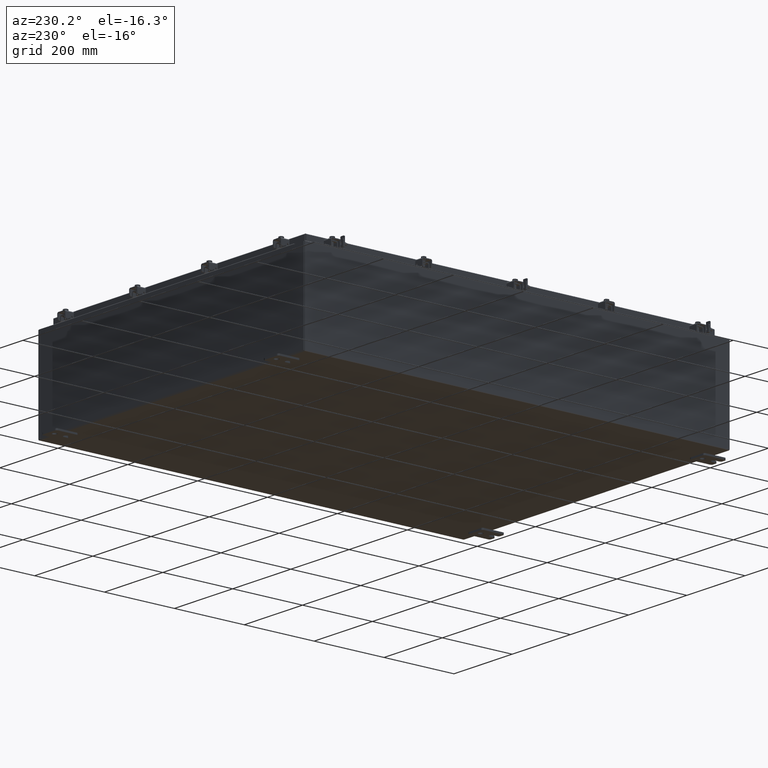
[diagram: clean part render]
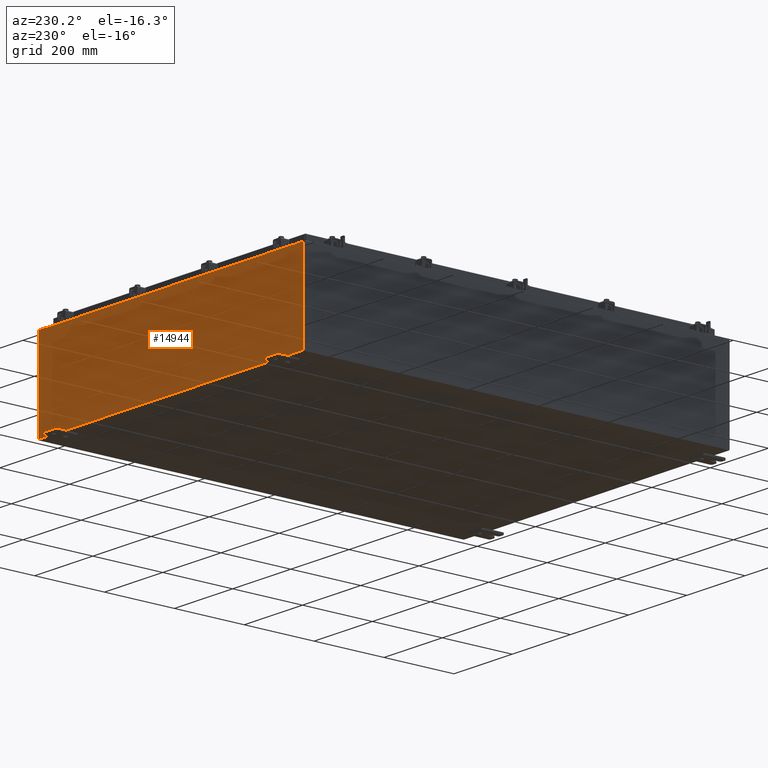
[diagram: same view with one face highlighted and labeled with its STEP entity id]
A machine part, auxiliary view. The second image highlights one B-rep face of the part: STEP entity #14944.
In plain terms, the highlighted planar face has unit normal (0, -1, 0).
Its self-contained STEP definition (entity closure, byte-faithful):
#78 = CARTESIAN_POINT ( 'NONE',  ( 16.63720000000000400, 0.0000000000000000000, 0.0000000000000000000 ) ) ;
#396 = ORIENTED_EDGE ( 'NONE', *, *, #16751, .T. ) ;
#572 = CIRCLE ( 'NONE', #24069, 0.01867499999999949400 ) ;
#1124 = DIRECTION ( 'NONE',  ( -0.0000000000000000000, 1.000000000000000000, -0.0000000000000000000 ) ) ;
#1149 = LINE ( 'NONE', #17391, #21788 ) ;
#2228 = VECTOR ( 'NONE', #7905, 39.37007874015748100 ) ;
#2533 = VECTOR ( 'NONE', #15061, 39.37007874015748100 ) ;
#2615 = CARTESIAN_POINT ( 'NONE',  ( -16.67455000000000000, -0.0000000000000000000, 0.0000000000000000000 ) ) ;
#2681 = EDGE_LOOP ( 'NONE', ( #20347, #8899, #17238, #16790, #3472, #9007, #3804, #396, #13485, #26007, #18207, #12323 ) ) ;
#2917 = CARTESIAN_POINT ( 'NONE',  ( -17.92530000000000000, 0.0000000000000000000, 4.925300000000000000 ) ) ;
#3228 = CARTESIAN_POINT ( 'NONE',  ( 16.63720000000000400, 0.0000000000000000000, 4.912300000000000100 ) ) ;
#3472 = ORIENTED_EDGE ( 'NONE', *, *, #21086, .F. ) ;
#3637 = PLANE ( 'NONE',  #26906 ) ;
#3701 = CARTESIAN_POINT ( 'NONE',  ( -16.63720000000000400, -0.0000000000000000000, 0.0000000000000000000 ) ) ;
#3710 = VERTEX_POINT ( 'NONE', #3228 ) ;
#3804 = ORIENTED_EDGE ( 'NONE', *, *, #15725, .F. ) ;
#4060 = VECTOR ( 'NONE', #26205, 39.37007874015748100 ) ;
#4766 = DIRECTION ( 'NONE',  ( 0.0000000000000000000, 0.0000000000000000000, 1.000000000000000000 ) ) ;
#5043 = DIRECTION ( 'NONE',  ( -8.681145560800009800E-014, 0.0000000000000000000, -1.000000000000000000 ) ) ;
#5249 = VECTOR ( 'NONE', #8624, 39.37007874015748100 ) ;
#5761 = DIRECTION ( 'NONE',  ( 0.0000000000000000000, -0.0000000000000000000, -1.000000000000000000 ) ) ;
#5833 = EDGE_CURVE ( 'NONE', #11591, #24141, #10582, .T. ) ;
#6787 = CARTESIAN_POINT ( 'NONE',  ( 17.92530000000000000, 0.0000000000000000000, -4.925300000000000000 ) ) ;
#6938 = LINE ( 'NONE', #23240, #18984 ) ;
#7022 = CARTESIAN_POINT ( 'NONE',  ( -16.63720000000000400, -7.171100983368691200E-016, 4.912300000000000100 ) ) ;
#7140 = CIRCLE ( 'NONE', #10379, 0.01867499999999949400 ) ;
#7340 = DIRECTION ( 'NONE',  ( 0.0000000000000000000, 0.0000000000000000000, -1.000000000000000000 ) ) ;
#7688 = CARTESIAN_POINT ( 'NONE',  ( -17.92530000000000000, 0.0000000000000000000, -4.925300000000000000 ) ) ;
#7905 = DIRECTION ( 'NONE',  ( 0.0000000000000000000, 0.0000000000000000000, -1.000000000000000000 ) ) ;
#7946 = VERTEX_POINT ( 'NONE', #17876 ) ;
#8139 = VERTEX_POINT ( 'NONE', #7688 ) ;
#8212 = LINE ( 'NONE', #23511, #2533 ) ;
#8220 = EDGE_CURVE ( 'NONE', #13167, #18881, #7140, .T. ) ;
#8624 = DIRECTION ( 'NONE',  ( 0.0000000000000000000, 0.0000000000000000000, 1.000000000000000000 ) ) ;
#8710 = VERTEX_POINT ( 'NONE', #26462 ) ;
#8899 = ORIENTED_EDGE ( 'NONE', *, *, #8220, .F. ) ;
#9007 = ORIENTED_EDGE ( 'NONE', *, *, #24821, .F. ) ;
#9191 = CARTESIAN_POINT ( 'NONE',  ( 17.92530000000000000, 0.0000000000000000000, 4.925300000000000000 ) ) ;
#9734 = LINE ( 'NONE', #7022, #4060 ) ;
#9763 = LINE ( 'NONE', #20121, #15427 ) ;
#10005 = EDGE_CURVE ( 'NONE', #21319, #20500, #9763, .T. ) ;
#10188 = CARTESIAN_POINT ( 'NONE',  ( -16.65587500000000200, 0.0000000000000000000, 4.874950000000000100 ) ) ;
#10299 = CARTESIAN_POINT ( 'NONE',  ( 16.63720000000000400, 0.0000000000000000000, 4.874950000000000100 ) ) ;
#10379 = AXIS2_PLACEMENT_3D ( 'NONE', #10188, #25094, #12331 ) ;
#10493 = DIRECTION ( 'NONE',  ( 1.000000000000000000, 0.0000000000000000000, 0.0000000000000000000 ) ) ;
#10538 = EDGE_CURVE ( 'NONE', #16989, #3710, #9734, .T. ) ;
#10582 = LINE ( 'NONE', #11549, #21928 ) ;
#11549 = CARTESIAN_POINT ( 'NONE',  ( -17.92530000000000000, 0.0000000000000000000, 4.925300000000000000 ) ) ;
#11591 = VERTEX_POINT ( 'NONE', #2917 ) ;
#12022 = VECTOR ( 'NONE', #5043, 39.37007874015748100 ) ;
#12323 = ORIENTED_EDGE ( 'NONE', *, *, #5833, .T. ) ;
#12331 = DIRECTION ( 'NONE',  ( 0.0000000000000000000, 0.0000000000000000000, -1.000000000000000000 ) ) ;
#12687 = LINE ( 'NONE', #26265, #12022 ) ;
#13020 = EDGE_CURVE ( 'NONE', #18881, #24141, #15619, .T. ) ;
#13167 = VERTEX_POINT ( 'NONE', #24122 ) ;
#13485 = ORIENTED_EDGE ( 'NONE', *, *, #10005, .T. ) ;
#13869 = CARTESIAN_POINT ( 'NONE',  ( 16.65587500000000200, 0.0000000000000000000, 4.874950000000000100 ) ) ;
#14944 = ADVANCED_FACE ( 'NONE', ( #20385 ), #3637, .F. ) ;
#15061 = DIRECTION ( 'NONE',  ( -1.000000000000000000, -0.0000000000000000000, -0.0000000000000000000 ) ) ;
#15427 = VECTOR ( 'NONE', #7340, 39.37007874015748100 ) ;
#15619 = LINE ( 'NONE', #2615, #26254 ) ;
#15725 = EDGE_CURVE ( 'NONE', #7946, #8710, #12687, .T. ) ;
#15996 = DIRECTION ( 'NONE',  ( 0.0000000000000000000, 0.0000000000000000000, -1.000000000000000000 ) ) ;
#16599 = LINE ( 'NONE', #78, #5249 ) ;
#16720 = VERTEX_POINT ( 'NONE', #10299 ) ;
#16751 = EDGE_CURVE ( 'NONE', #7946, #21319, #6938, .T. ) ;
#16790 = ORIENTED_EDGE ( 'NONE', *, *, #10538, .T. ) ;
#16989 = VERTEX_POINT ( 'NONE', #24196 ) ;
#17238 = ORIENTED_EDGE ( 'NONE', *, *, #24980, .F. ) ;
#17391 = CARTESIAN_POINT ( 'NONE',  ( -17.92530000000000000, 0.0000000000000000000, 4.925300000000000000 ) ) ;
#17876 = CARTESIAN_POINT ( 'NONE',  ( 16.67455000000000700, 0.0000000000000000000, 4.925300000000000000 ) ) ;
#18207 = ORIENTED_EDGE ( 'NONE', *, *, #27133, .T. ) ;
#18572 = DIRECTION ( 'NONE',  ( 0.0000000000000000000, -1.000000000000000000, 0.0000000000000000000 ) ) ;
#18630 = CARTESIAN_POINT ( 'NONE',  ( -16.67455000000000000, 0.0000000000000000000, 4.925300000000000000 ) ) ;
#18881 = VERTEX_POINT ( 'NONE', #22376 ) ;
#18984 = VECTOR ( 'NONE', #10493, 39.37007874015748100 ) ;
#19526 = DIRECTION ( 'NONE',  ( -0.0000000000000000000, -0.0000000000000000000, 1.000000000000000000 ) ) ;
#20121 = CARTESIAN_POINT ( 'NONE',  ( 17.92530000000000000, 0.0000000000000000000, 4.925300000000000000 ) ) ;
#20347 = ORIENTED_EDGE ( 'NONE', *, *, #13020, .F. ) ;
#20385 = FACE_OUTER_BOUND ( 'NONE', #2681, .T. ) ;
#20500 = VERTEX_POINT ( 'NONE', #6787 ) ;
#21086 = EDGE_CURVE ( 'NONE', #16720, #3710, #16599, .T. ) ;
#21319 = VERTEX_POINT ( 'NONE', #9191 ) ;
#21788 = VECTOR ( 'NONE', #19526, 39.37007874015748100 ) ;
#21928 = VECTOR ( 'NONE', #26451, 39.37007874015748100 ) ;
#22376 = CARTESIAN_POINT ( 'NONE',  ( -16.67455000000000000, 0.0000000000000000000, 4.874950000000000100 ) ) ;
#23240 = CARTESIAN_POINT ( 'NONE',  ( -17.92530000000000000, 0.0000000000000000000, 4.925300000000000000 ) ) ;
#23511 = CARTESIAN_POINT ( 'NONE',  ( -17.92530000000000000, 0.0000000000000000000, -4.925300000000000000 ) ) ;
#24069 = AXIS2_PLACEMENT_3D ( 'NONE', #13869, #1124, #15996 ) ;
#24122 = CARTESIAN_POINT ( 'NONE',  ( -16.63720000000000400, -0.0000000000000000000, 4.874950000000000100 ) ) ;
#24141 = VERTEX_POINT ( 'NONE', #18630 ) ;
#24196 = CARTESIAN_POINT ( 'NONE',  ( -16.63720000000000400, -7.171100983368691200E-016, 4.912300000000000100 ) ) ;
#24199 = LINE ( 'NONE', #3701, #2228 ) ;
#24821 = EDGE_CURVE ( 'NONE', #8710, #16720, #572, .T. ) ;
#24871 = CARTESIAN_POINT ( 'NONE',  ( 0.0000000000000000000, 0.0000000000000000000, 0.0000000000000000000 ) ) ;
#24980 = EDGE_CURVE ( 'NONE', #16989, #13167, #24199, .T. ) ;
#25094 = DIRECTION ( 'NONE',  ( -0.0000000000000000000, 1.000000000000000000, -0.0000000000000000000 ) ) ;
#25191 = EDGE_CURVE ( 'NONE', #20500, #8139, #8212, .T. ) ;
#26007 = ORIENTED_EDGE ( 'NONE', *, *, #25191, .T. ) ;
#26205 = DIRECTION ( 'NONE',  ( 1.000000000000000000, 0.0000000000000000000, 0.0000000000000000000 ) ) ;
#26254 = VECTOR ( 'NONE', #4766, 39.37007874015748100 ) ;
#26265 = CARTESIAN_POINT ( 'NONE',  ( 16.67454999999957700, -0.0000000000000000000, -1.447541957108341500E-012 ) ) ;
#26451 = DIRECTION ( 'NONE',  ( 1.000000000000000000, 0.0000000000000000000, 0.0000000000000000000 ) ) ;
#26462 = CARTESIAN_POINT ( 'NONE',  ( 16.67455000000000000, 0.0000000000000000000, 4.874950000000000100 ) ) ;
#26906 = AXIS2_PLACEMENT_3D ( 'NONE', #24871, #18572, #5761 ) ;
#27133 = EDGE_CURVE ( 'NONE', #8139, #11591, #1149, .T. ) ;